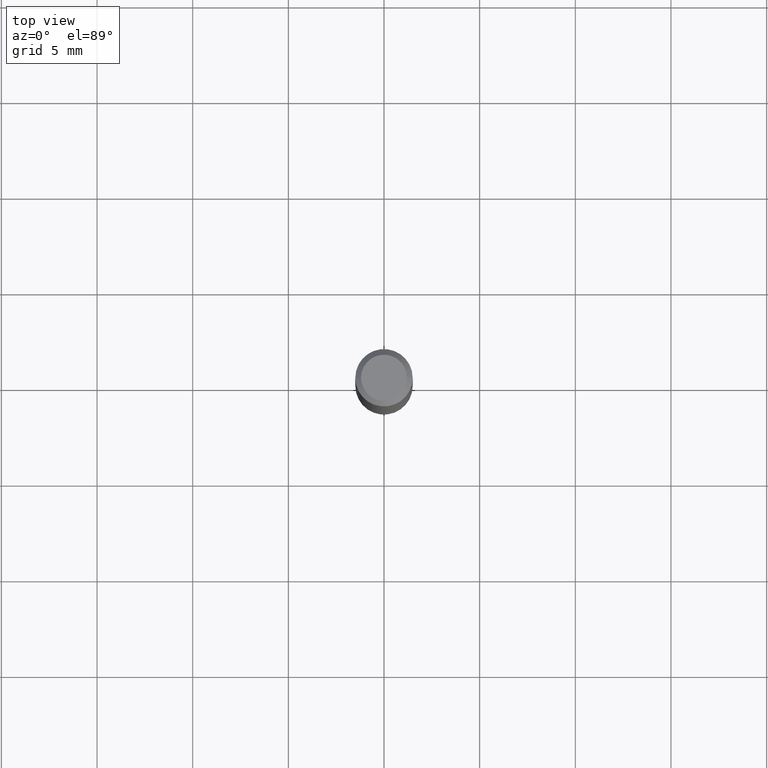
[diagram: clean part render]
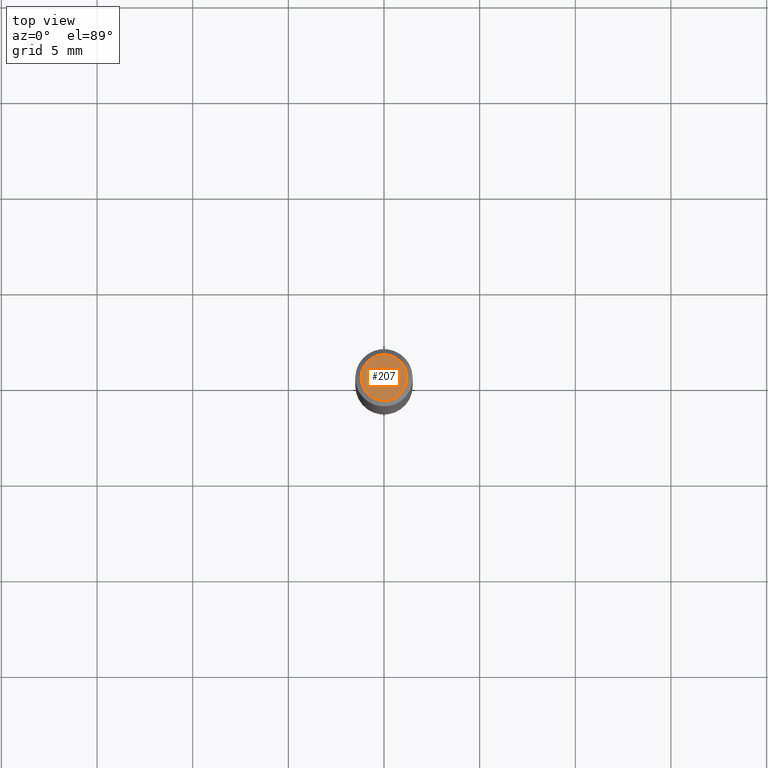
[diagram: same view with one face highlighted and labeled with its STEP entity id]
A machine part, top view. The second image highlights one B-rep face of the part: STEP entity #207.
In plain terms, the highlighted planar face has unit normal (0, -0, -1).
Its self-contained STEP definition (entity closure, byte-faithful):
#11 = DIRECTION ( 'NONE',  ( -1.000000000000000000, 6.982962677686265922E-15, -4.876176775795935793E-29 ) ) ;
#37 = CIRCLE ( 'NONE', #164, 0.04724000000000000421 ) ;
#81 = PLANE ( 'NONE',  #209 ) ;
#117 = AXIS2_PLACEMENT_3D ( 'NONE', #476, #352, #131 ) ;
#131 = DIRECTION ( 'NONE',  ( 1.000000000000000000, -6.982962677686266711E-15, 4.876185090822587894E-29 ) ) ;
#135 = DIRECTION ( 'NONE',  ( 1.000000000000000000, -6.982962677686266711E-15, 4.876185090822587894E-29 ) ) ;
#157 = FACE_OUTER_BOUND ( 'NONE', #440, .T. ) ;
#163 = CARTESIAN_POINT ( 'NONE',  ( 0.04724000000000000421, -3.852183633974369345E-16, -3.380025165621689721E-19 ) ) ;
#164 = AXIS2_PLACEMENT_3D ( 'NONE', #452, #481, #135 ) ;
#180 = VERTEX_POINT ( 'NONE', #163 ) ;
#183 = VERTEX_POINT ( 'NONE', #347 ) ;
#193 = CARTESIAN_POINT ( 'NONE',  ( 4.132873053354867254E-48, -5.900647395337818946E-34, -1.690012582823346072E-19 ) ) ;
#207 = ADVANCED_FACE ( 'NONE', ( #157 ), #81, .F. ) ;
#209 = AXIS2_PLACEMENT_3D ( 'NONE', #193, #221, #11 ) ;
#221 = DIRECTION ( 'NONE',  ( 2.438088387897960049E-29, -3.491481338843145188E-15, -1.000000000000000000 ) ) ;
#222 = ORIENTED_EDGE ( 'NONE', *, *, #333, .T. ) ;
#325 = ORIENTED_EDGE ( 'NONE', *, *, #434, .T. ) ;
#333 = EDGE_CURVE ( 'NONE', #183, #180, #405, .T. ) ;
#347 = CARTESIAN_POINT ( 'NONE',  ( -0.04724000000000000421, 3.504923541997677355E-16, -3.380025165670481712E-19 ) ) ;
#352 = DIRECTION ( 'NONE',  ( -2.445468806185136597E-29, 3.491481338843145583E-15, 1.000000000000000000 ) ) ;
#405 = CIRCLE ( 'NONE', #117, 0.04724000000000000421 ) ;
#434 = EDGE_CURVE ( 'NONE', #180, #183, #37, .T. ) ;
#440 = EDGE_LOOP ( 'NONE', ( #222, #325 ) ) ;
#452 = CARTESIAN_POINT ( 'NONE',  ( 8.265746106709734507E-48, -1.180129479067563789E-33, -3.380025165646692144E-19 ) ) ;
#476 = CARTESIAN_POINT ( 'NONE',  ( 8.265746106709734507E-48, -1.180129479067563789E-33, -3.380025165646692144E-19 ) ) ;
#481 = DIRECTION ( 'NONE',  ( -2.445468806185136597E-29, 3.491481338843145583E-15, 1.000000000000000000 ) ) ;